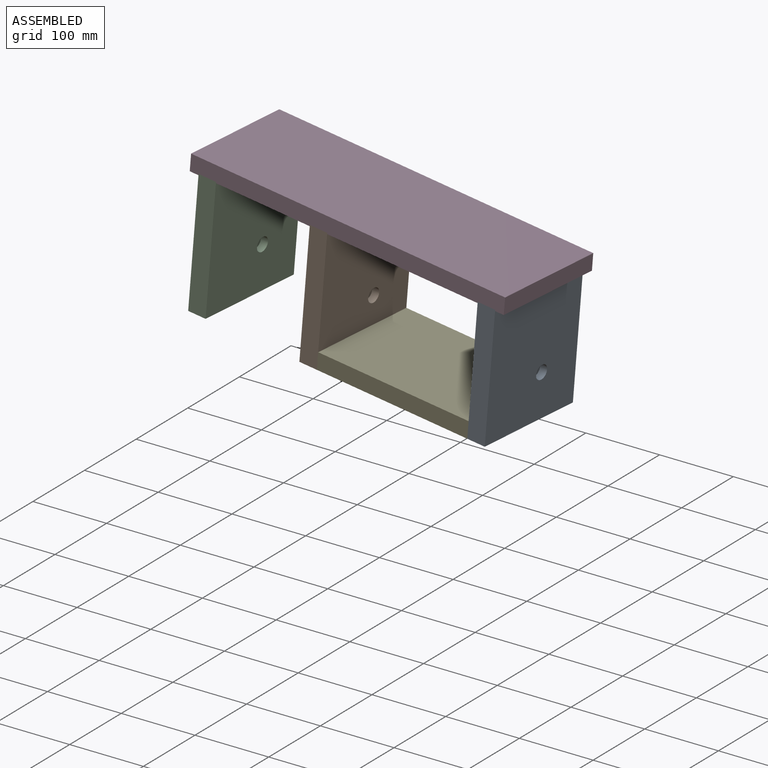
[diagram: assembled view]
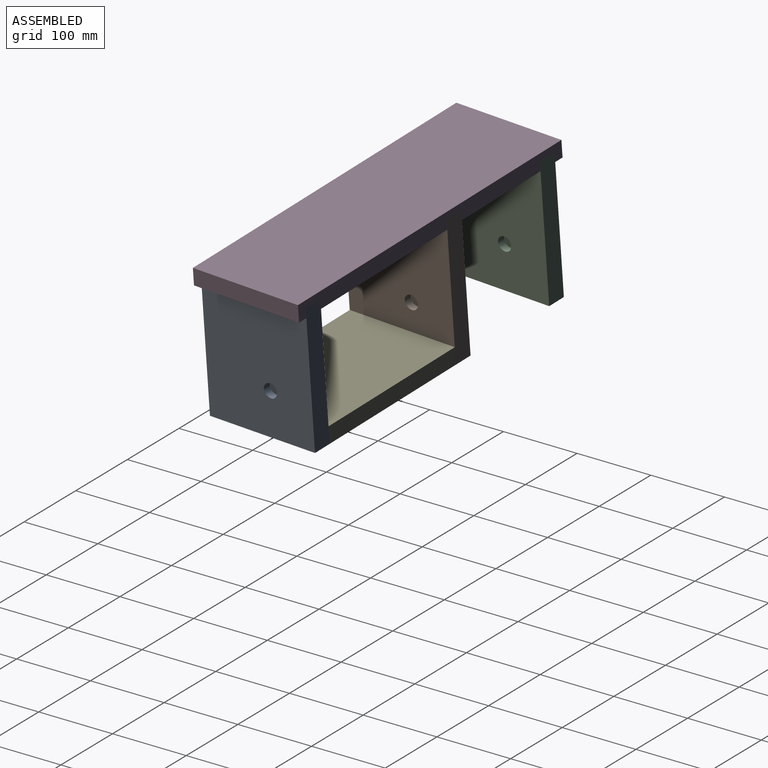
[diagram: assembled view, second angle]
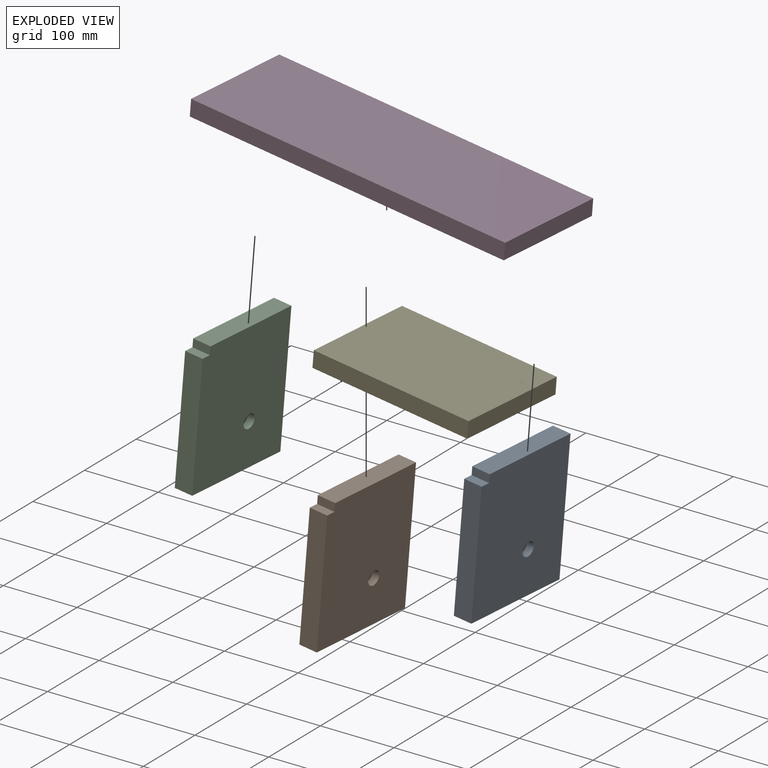
[diagram: exploded view]
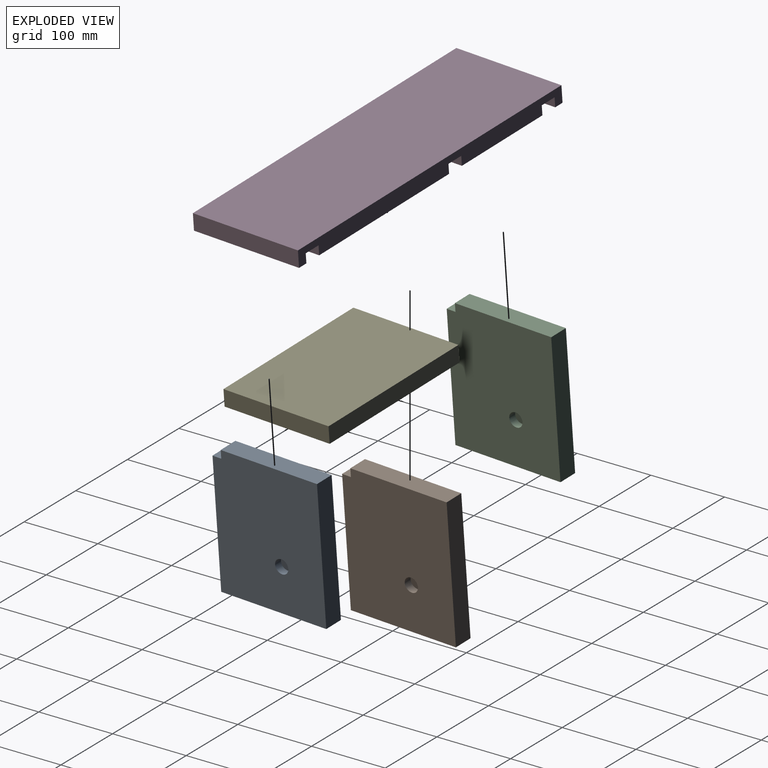
[diagram: exploded view, second angle]
ASSEMBLY  parts=5 mates=4
PART A: 10 faces, bbox 25.4x152.4x184.2 mm
  f0: plane 139.7x25.4mm, normal (0,0,1), area 3548.4mm2, adj f2,f3,f5,f6
  f1: plane 173.04x25.4mm, normal (0,-1,0), area 4395.2mm2, adj f2,f3,f4,f7
  f2: plane 184.15x152.4mm, normal (1,0,0), area 27638.3mm2, adj f0,f1,f4,f5,f6,f7,f8
  f3: plane 184.15x152.4mm, normal (-1,0,0), area 27923.3mm2, adj f0,f1,f4,f5,f6,f7
  f4: plane 152.4x25.4mm, normal (0,0,-1), area 3871mm2, adj f1,f2,f3,f5
  f5: plane 184.15x25.4mm, normal (0,1,0), area 4677.4mm2, adj f0,f2,f3,f4
  f6: plane 25.4x11.11mm, normal (0,-1,0), area 282.3mm2, adj f0,f2,f3,f7
  f7: plane 25.4x12.7mm, normal (0,0,1), area 322.6mm2, adj f1,f2,f3,f6
  f8: cylinder r=9.53mm len=19.05mm, axis (1,0,0), area 608mm2, adj f2,f9
  f9: plane 19.05x19.05mm, normal (1,0,0), area 285mm2, adj f8
PART B: same geometry as A
PART C: same geometry as A
PART D: 18 faces, bbox 457.2x152.4x22.2 mm
  f0: plane 457.2x152.4mm, normal (0,0,-1), area 60362.8mm2, adj f1,f2,f3,f4,f6,f7,f8,f10
  f1: plane 457.2x22.23mm, normal (0,-1,0), area 10161.3mm2, adj f0,f2,f4,f5
  f2: plane 152.4x22.23mm, normal (1,0,0), area 3387.1mm2, adj f0,f1,f3,f5
  f3: plane 457.2x22.23mm, normal (0,1,0), area 9314.5mm2, adj f0,f2,f4,f5,f7,f8,f9,f11
  f4: plane 152.4x22.23mm, normal (-1,0,0), area 3387.1mm2, adj f0,f1,f3,f5
  f5: plane 457.2x152.4mm, normal (0,0,1), area 69677.3mm2, adj f1,f2,f3,f4
  f6: plane 22.23x12.7mm, normal (0,1,0), area 282.3mm2, adj f0,f7,f8,f9
  f7: plane 139.7x12.7mm, normal (1,0,0), area 1774.2mm2, adj f0,f3,f6,f9
  f8: plane 139.7x12.7mm, normal (-1,0,0), area 1774.2mm2, adj f0,f3,f6,f9
  f9: plane 139.7x22.23mm, normal (0,0,-1), area 3104.8mm2, adj f3,f6,f7,f8
  f10: plane 22.23x12.7mm, normal (0,1,0), area 282.3mm2, adj f0,f11,f12,f13
  f11: plane 139.7x12.7mm, normal (1,0,0), area 1774.2mm2, adj f0,f3,f10,f13
  f12: plane 139.7x12.7mm, normal (-1,0,0), area 1774.2mm2, adj f0,f3,f10,f13
  f13: plane 139.7x22.23mm, normal (0,0,-1), area 3104.8mm2, adj f3,f10,f11,f12
  f14: plane 22.23x12.7mm, normal (0,1,0), area 282.3mm2, adj f0,f15,f16,f17
  f15: plane 139.7x12.7mm, normal (1,0,0), area 1774.2mm2, adj f0,f3,f14,f17
  f16: plane 139.7x12.7mm, normal (-1,0,0), area 1774.2mm2, adj f0,f3,f14,f17
  f17: plane 139.7x22.23mm, normal (0,0,-1), area 3104.8mm2, adj f3,f14,f15,f16
PART E: 6 faces, bbox 225.4x152.4x22.2 mm
  f0: plane 225.43x22.23mm, normal (0,1,0), area 5010.1mm2, adj f1,f3,f4,f5
  f1: plane 152.4x22.23mm, normal (-1,0,0), area 3387.1mm2, adj f0,f2,f4,f5
  f2: plane 225.43x22.23mm, normal (0,-1,0), area 5010.1mm2, adj f1,f3,f4,f5
  f3: plane 152.4x22.23mm, normal (1,0,0), area 3387.1mm2, adj f0,f2,f4,f5
  f4: plane 225.43x152.4mm, normal (0,0,1), area 34354.8mm2, adj f0,f1,f2,f3
  f5: plane 225.43x152.4mm, normal (0,0,-1), area 34354.8mm2, adj f0,f1,f2,f3
PLACE A rot(axis=(0.03,0.71,-0.71),7.1deg) t=(253.55,212.42,328.94)mm
PLACE B rot(axis=(0.03,0.71,-0.71),7.1deg) t=(10.93,233.64,350.25)mm
PLACE C rot(axis=(0.03,0.71,-0.71),7.1deg) t=(-149.77,247.7,364.36)mm
PLACE D rot(axis=(0.03,0.71,-0.71),7.1deg) t=(46.5,13.05,355.74)mm
PLACE E rot(axis=(0.03,0.71,-0.71),7.1deg) t=(585.79,103.91,137.32)mm
MATE fastened B.f0 <-> D.f13  axis (0.09,-0.01,1) through (0.68,93.55,373.09)mm
MATE fastened C.f0 <-> D.f17  axis (0.09,-0.01,1) through (-160.02,107.6,387.2)mm
MATE fastened E.f5 <-> A.f4  axis (-0.09,0.01,-1) through (214.03,-78.1,168.33)mm
MATE fastened A.f0 <-> D.f9  axis (-0.09,0.01,-1) through (268.5,70.11,349.57)mm
